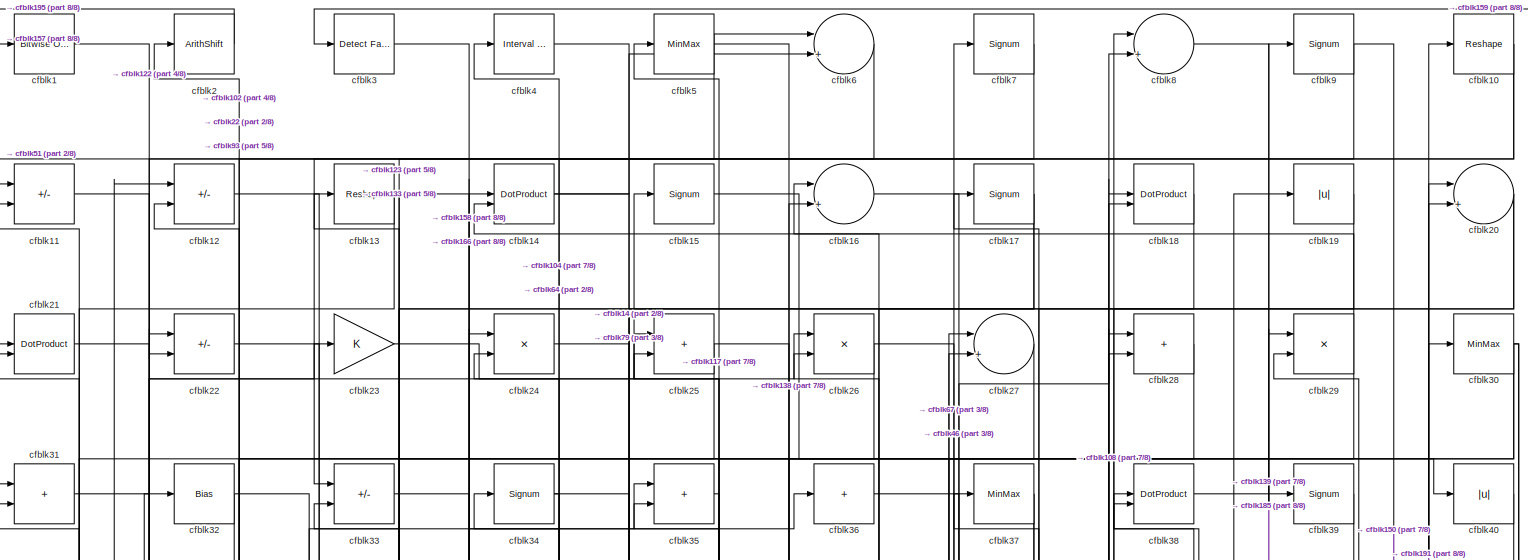
[diagram: root canvas - part 1/8, full width, top band]
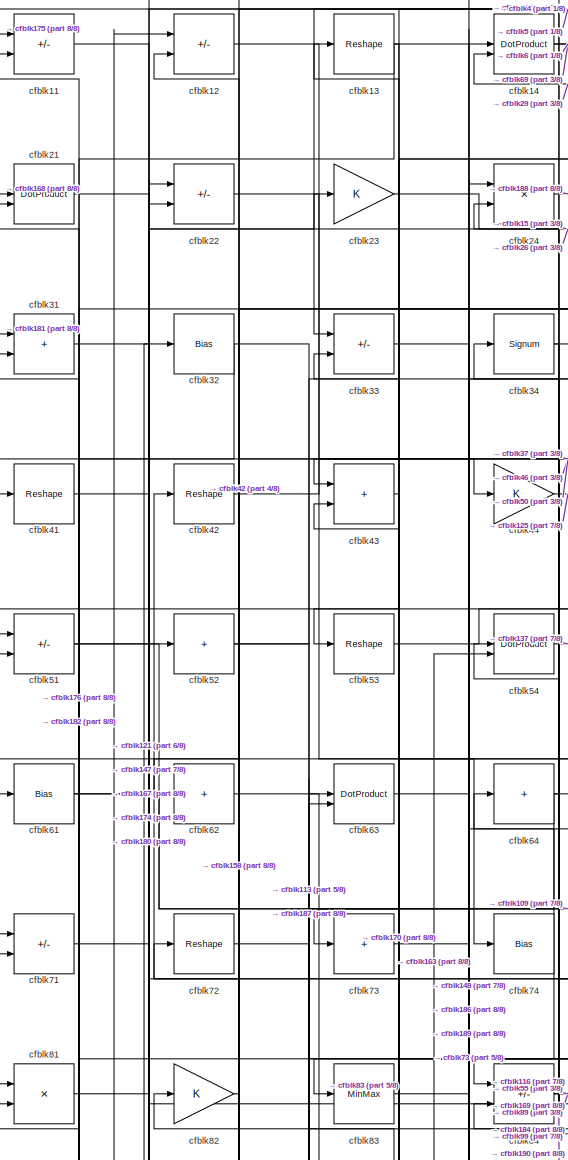
[diagram: root canvas - part 2/8, top left region]
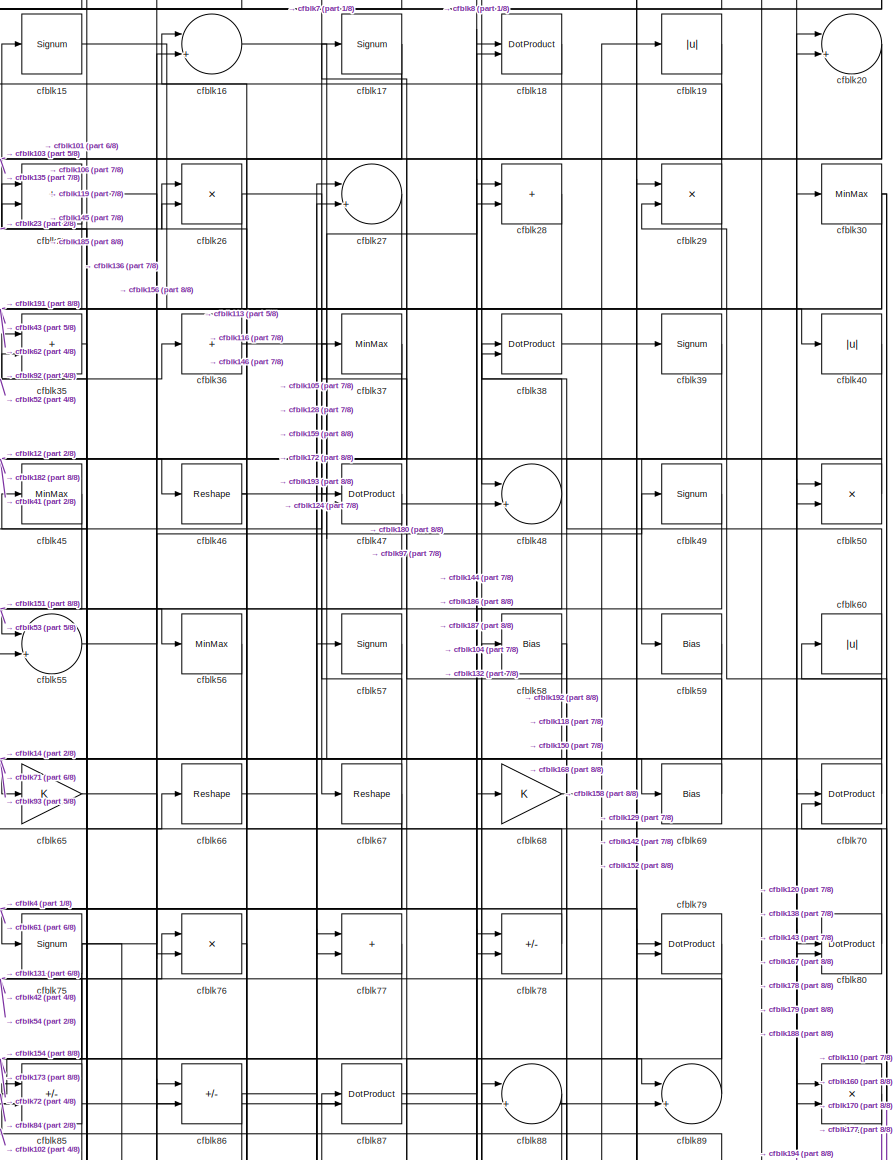
[diagram: root canvas - part 3/8, top right region]
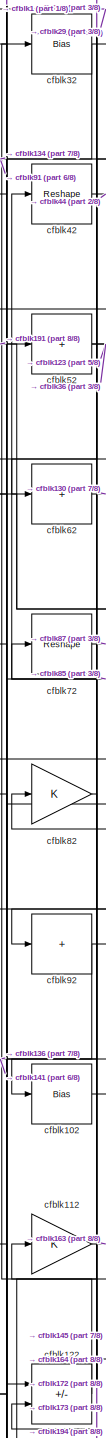
[diagram: root canvas - part 4/8, middle left region]
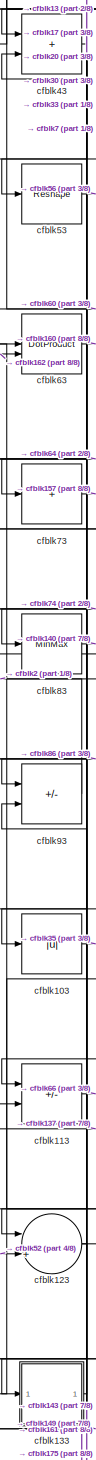
[diagram: root canvas - part 5/8, middle left region]
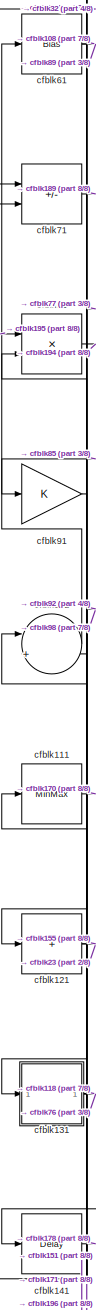
[diagram: root canvas - part 6/8, middle left region]
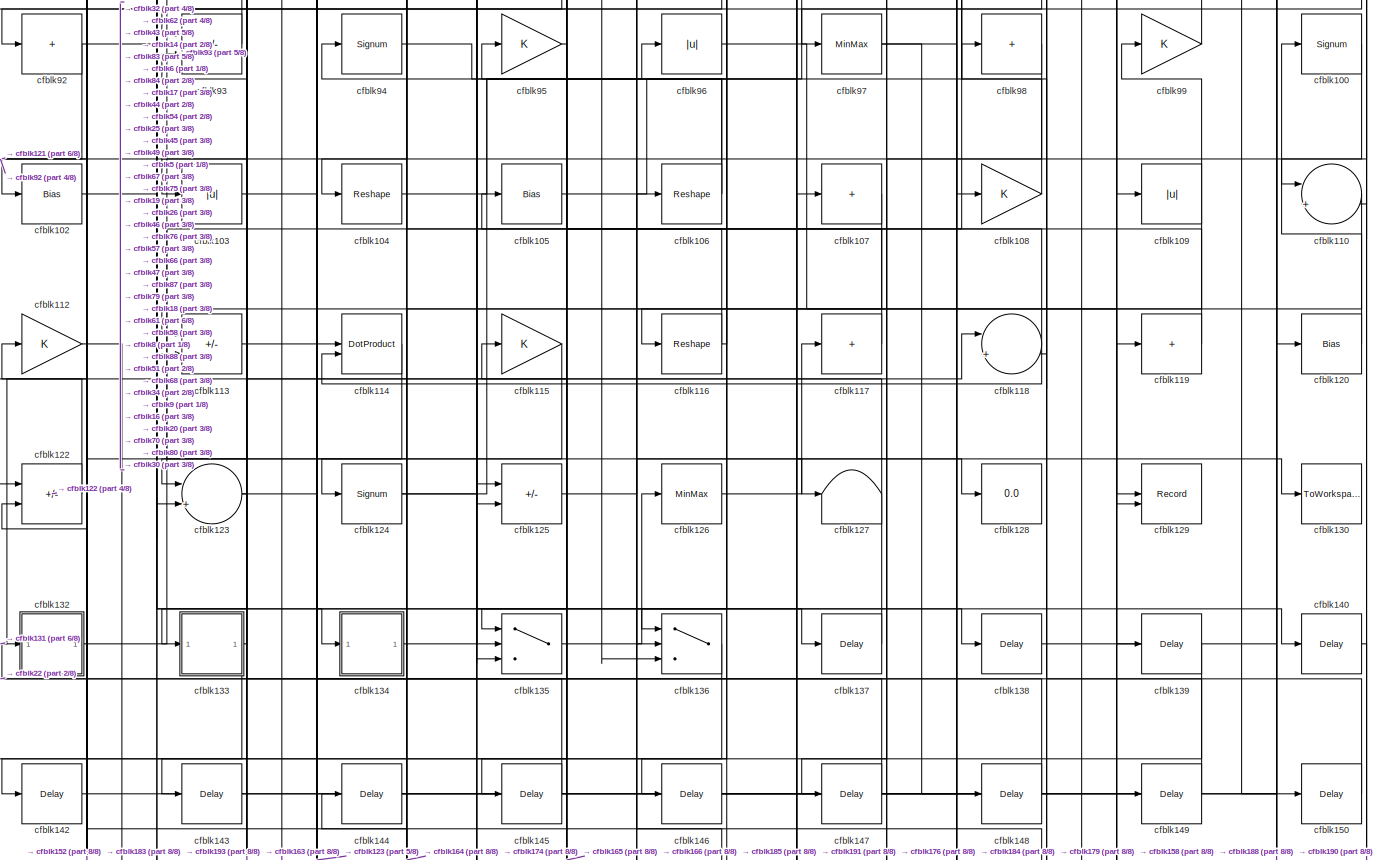
[diagram: root canvas - part 7/8, full width, middle band]
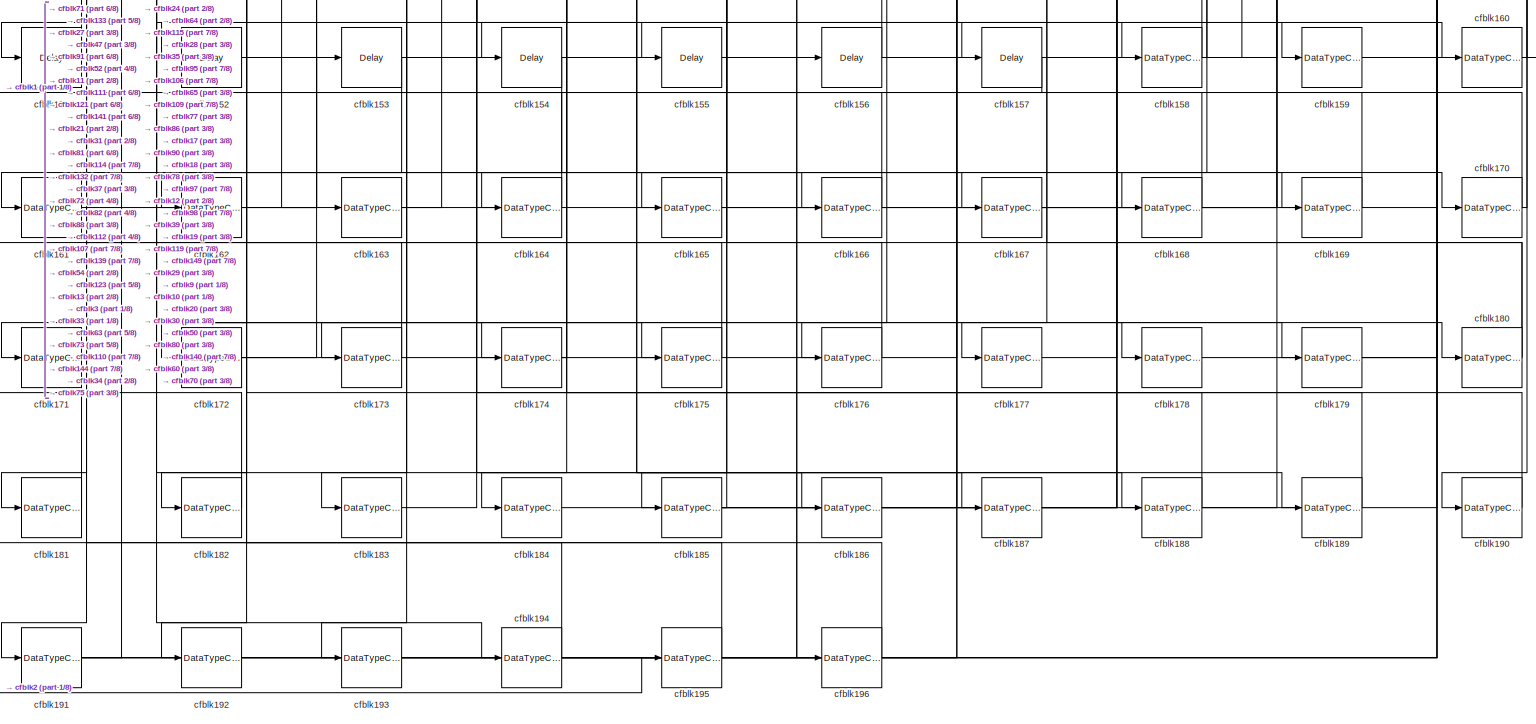
[diagram: root canvas - part 8/8, full width, bottom band]
MODEL slx_ef4070218fa3
KIND model
CONFIG AbsTol = auto
CONFIG EnableMultiTasking = off
CONFIG FixedStep = auto
CONFIG MaxStep = auto
CONFIG MinStep = auto
CONFIG RelTol = 1e-3
CONFIG SampleTimeConstraint = Unconstrained
CONFIG SolverName = VariableStepAuto
CONFIG StartTime = 0.0
CONFIG StopTime = 10.0
BLOCK [Reference] cfblk1  REF=simulink/Logic and Bit
Operations/Bitwise
Operator
  LibrarySourceBlock = hdlsllib/Logic and Bit\nOperations/Bitwise\nOperator
  SourceBlock = simulink/Logic and Bit\nOperations/Bitwise\nOperator
  SourceType = Bitwise Operator
BLOCK [Reshape] cfblk10
BLOCK [Signum] cfblk100
BLOCK [Sum] cfblk101
  Inputs = |++
BLOCK [Bias] cfblk102
  Bias = 0.0
  SaturateOnIntegerOverflow = off
BLOCK [Abs] cfblk103
  SaturateOnIntegerOverflow = off
BLOCK [Reshape] cfblk104
BLOCK [Bias] cfblk105
  Bias = 0.0
  SaturateOnIntegerOverflow = off
BLOCK [Reshape] cfblk106
BLOCK [Sum] cfblk107
  IconShape = rectangular
  Inputs = +
BLOCK [Gain] cfblk108
BLOCK [Abs] cfblk109
  SaturateOnIntegerOverflow = off
BLOCK [Sum] cfblk11
  IconShape = rectangular
  Inputs = +-
BLOCK [Sum] cfblk110
  Inputs = |++
BLOCK [MinMax] cfblk111
BLOCK [Gain] cfblk112
BLOCK [Sum] cfblk113
  IconShape = rectangular
  Inputs = +-
BLOCK [DotProduct] cfblk114
  OutDataTypeStr = Inherit: Inherit via internal rule
BLOCK [Gain] cfblk115
BLOCK [Reshape] cfblk116
BLOCK [Sum] cfblk117
  IconShape = rectangular
  Inputs = +
BLOCK [Sum] cfblk118
  Inputs = |++
BLOCK [Sum] cfblk119
  IconShape = rectangular
  Inputs = +
BLOCK [Sum] cfblk12
  IconShape = rectangular
  Inputs = +-
BLOCK [Bias] cfblk120
  Bias = 0.0
  SaturateOnIntegerOverflow = off
BLOCK [Sum] cfblk121
  IconShape = rectangular
  Inputs = +
BLOCK [Sum] cfblk122
  IconShape = rectangular
  Inputs = +-
BLOCK [Sum] cfblk123
  Inputs = |++
BLOCK [Signum] cfblk124
BLOCK [Sum] cfblk125
  IconShape = rectangular
  Inputs = +-
BLOCK [MinMax] cfblk126
BLOCK [Terminator] cfblk127
BLOCK [Display] cfblk128
  Decimation = 1
BLOCK [Record] cfblk129
  CompatibilityTag = XY
  FileSettingsInternal = {"entries":[{"content":{"excelSettings":{"content":{},"type":"Streamout.ExcelSettings"}},"type":"Streamout.FileSettingStorage","uuid":""}],"packageUris":["http:\/\/schema.mathworks.com\/mf0\/streamout_blocks\/R2020a"],"version":"1.0"}
  Layout = [1 1]
  SignalsInternal = {"entries":[{"content":{"signals":[{"content":{"blockPath":[],"dimensions":[1],"domain":"","lineColor":"#a2142f","plots":[1],"port":1,"signalID":855,"signalName":"XY Graph:1"},"type":"RecordBlkView.Signal","uuid":""},{"content":{"blockPath":[],"dimensions":[1],"domain":"","lineColor":"#139fff","plots":[1],"port":2,"signalID":858,"signalName":"XY Graph:2"},"type":"RecordBlkView.Signal","uuid":""}]}...<+144ch>
  VisualizationBindings = {"xyplotplugin":{"info":[{"series":[{"bindingParametersList":[{"parameter":"X-Axis","signalID":855,"signalName":"XY Graph:1"},{"parameter":"Y-Axis","signalID":858,"signalName":"XY Graph:2"}],"seriesID":9135}],"subplotID":1}]}}
  st = -1
BLOCK [Reshape] cfblk13
BLOCK [ToWorkspace] cfblk130
  MaxDataPoints = inf
  SampleTime = -1
  SaveFormat = Timeseries
  VariableName = simout
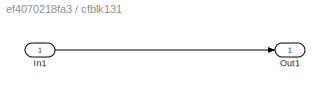
BLOCK [SubSystem] cfblk131
  LibrarySourceBlock = hdlsllib/Ports &\nSubsystems/Subsystem
BLOCK [Inport] cfblk131/In1
BLOCK [Outport] cfblk131/Out1
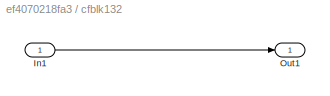
BLOCK [SubSystem] cfblk132
  LibrarySourceBlock = hdlsllib/Ports &\nSubsystems/Subsystem
BLOCK [Inport] cfblk132/In1
BLOCK [Outport] cfblk132/Out1
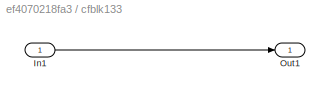
BLOCK [SubSystem] cfblk133
  LibrarySourceBlock = hdlsllib/Ports &\nSubsystems/Subsystem
BLOCK [Inport] cfblk133/In1
BLOCK [Outport] cfblk133/Out1
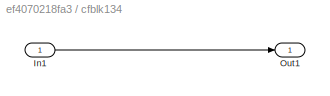
BLOCK [SubSystem] cfblk134
  LibrarySourceBlock = hdlsllib/Ports &\nSubsystems/Subsystem
BLOCK [Inport] cfblk134/In1
BLOCK [Outport] cfblk134/Out1
BLOCK [Switch] cfblk135
  InputSameDT = off
  SaturateOnIntegerOverflow = off
BLOCK [Switch] cfblk136
  InputSameDT = off
  SaturateOnIntegerOverflow = off
BLOCK [Delay] cfblk137
  InputPortMap = u0
  SampleTime = 1
BLOCK [Delay] cfblk138
  InputPortMap = u0
  SampleTime = 1
BLOCK [Delay] cfblk139
  InputPortMap = u0
  SampleTime = 1
BLOCK [DotProduct] cfblk14
  OutDataTypeStr = Inherit: Inherit via internal rule
BLOCK [Delay] cfblk140
  InputPortMap = u0
  SampleTime = 1
BLOCK [Delay] cfblk141
  InputPortMap = u0
  SampleTime = 1
BLOCK [Delay] cfblk142
  InputPortMap = u0
  SampleTime = 1
BLOCK [Delay] cfblk143
  InputPortMap = u0
  SampleTime = 1
BLOCK [Delay] cfblk144
  InputPortMap = u0
  SampleTime = 1
BLOCK [Delay] cfblk145
  InputPortMap = u0
  SampleTime = 1
BLOCK [Delay] cfblk146
  InputPortMap = u0
  SampleTime = 1
BLOCK [Delay] cfblk147
  InputPortMap = u0
  SampleTime = 1
BLOCK [Delay] cfblk148
  InputPortMap = u0
  SampleTime = 1
BLOCK [Delay] cfblk149
  InputPortMap = u0
  SampleTime = 1
BLOCK [Signum] cfblk15
BLOCK [Delay] cfblk150
  InputPortMap = u0
  SampleTime = 1
BLOCK [Delay] cfblk151
  InputPortMap = u0
  SampleTime = 1
BLOCK [Delay] cfblk152
  InputPortMap = u0
  SampleTime = 1
BLOCK [Delay] cfblk153
  InputPortMap = u0
  SampleTime = 1
BLOCK [Delay] cfblk154
  InputPortMap = u0
  SampleTime = 1
BLOCK [Delay] cfblk155
  InputPortMap = u0
  SampleTime = 1
BLOCK [Delay] cfblk156
  InputPortMap = u0
  SampleTime = 1
BLOCK [Delay] cfblk157
  InputPortMap = u0
  SampleTime = 1
BLOCK [DataTypeConversion] cfblk158
  RndMeth = Floor
  SaturateOnIntegerOverflow = off
BLOCK [DataTypeConversion] cfblk159
  OutDataTypeStr = uint8
  RndMeth = Floor
  SaturateOnIntegerOverflow = off
BLOCK [Sum] cfblk16
  Inputs = |++
BLOCK [DataTypeConversion] cfblk160
  OutDataTypeStr = uint8
  RndMeth = Floor
  SaturateOnIntegerOverflow = off
BLOCK [DataTypeConversion] cfblk161
  OutDataTypeStr = uint8
  RndMeth = Floor
  SaturateOnIntegerOverflow = off
BLOCK [DataTypeConversion] cfblk162
  OutDataTypeStr = uint8
  RndMeth = Floor
  SaturateOnIntegerOverflow = off
BLOCK [DataTypeConversion] cfblk163
  RndMeth = Floor
  SaturateOnIntegerOverflow = off
BLOCK [DataTypeConversion] cfblk164
  OutDataTypeStr = uint8
  RndMeth = Floor
  SaturateOnIntegerOverflow = off
BLOCK [DataTypeConversion] cfblk165
  OutDataTypeStr = uint8
  RndMeth = Floor
  SaturateOnIntegerOverflow = off
BLOCK [DataTypeConversion] cfblk166
  OutDataTypeStr = uint8
  RndMeth = Floor
  SaturateOnIntegerOverflow = off
BLOCK [DataTypeConversion] cfblk167
  OutDataTypeStr = uint8
  RndMeth = Floor
  SaturateOnIntegerOverflow = off
BLOCK [DataTypeConversion] cfblk168
  OutDataTypeStr = uint8
  RndMeth = Floor
  SaturateOnIntegerOverflow = off
BLOCK [DataTypeConversion] cfblk169
  OutDataTypeStr = uint8
  RndMeth = Floor
  SaturateOnIntegerOverflow = off
BLOCK [Signum] cfblk17
BLOCK [DataTypeConversion] cfblk170
  RndMeth = Floor
  SaturateOnIntegerOverflow = off
BLOCK [DataTypeConversion] cfblk171
  OutDataTypeStr = uint8
  RndMeth = Floor
  SaturateOnIntegerOverflow = off
BLOCK [DataTypeConversion] cfblk172
  RndMeth = Floor
  SaturateOnIntegerOverflow = off
BLOCK [DataTypeConversion] cfblk173
  OutDataTypeStr = uint8
  RndMeth = Floor
  SaturateOnIntegerOverflow = off
BLOCK [DataTypeConversion] cfblk174
  OutDataTypeStr = uint8
  RndMeth = Floor
  SaturateOnIntegerOverflow = off
BLOCK [DataTypeConversion] cfblk175
  OutDataTypeStr = uint8
  RndMeth = Floor
  SaturateOnIntegerOverflow = off
BLOCK [DataTypeConversion] cfblk176
  OutDataTypeStr = uint8
  RndMeth = Floor
  SaturateOnIntegerOverflow = off
BLOCK [DataTypeConversion] cfblk177
  OutDataTypeStr = uint8
  RndMeth = Floor
  SaturateOnIntegerOverflow = off
BLOCK [DataTypeConversion] cfblk178
  OutDataTypeStr = uint8
  RndMeth = Floor
  SaturateOnIntegerOverflow = off
BLOCK [DataTypeConversion] cfblk179
  OutDataTypeStr = uint8
  RndMeth = Floor
  SaturateOnIntegerOverflow = off
BLOCK [DotProduct] cfblk18
  OutDataTypeStr = Inherit: Inherit via internal rule
BLOCK [DataTypeConversion] cfblk180
  RndMeth = Floor
  SaturateOnIntegerOverflow = off
BLOCK [DataTypeConversion] cfblk181
  OutDataTypeStr = uint8
  RndMeth = Floor
  SaturateOnIntegerOverflow = off
BLOCK [DataTypeConversion] cfblk182
  OutDataTypeStr = uint8
  RndMeth = Floor
  SaturateOnIntegerOverflow = off
BLOCK [DataTypeConversion] cfblk183
  OutDataTypeStr = uint8
  RndMeth = Floor
  SaturateOnIntegerOverflow = off
BLOCK [DataTypeConversion] cfblk184
  OutDataTypeStr = uint8
  RndMeth = Floor
  SaturateOnIntegerOverflow = off
BLOCK [DataTypeConversion] cfblk185
  RndMeth = Floor
  SaturateOnIntegerOverflow = off
BLOCK [DataTypeConversion] cfblk186
  OutDataTypeStr = uint8
  RndMeth = Floor
  SaturateOnIntegerOverflow = off
BLOCK [DataTypeConversion] cfblk187
  OutDataTypeStr = uint8
  RndMeth = Floor
  SaturateOnIntegerOverflow = off
BLOCK [DataTypeConversion] cfblk188
  RndMeth = Floor
  SaturateOnIntegerOverflow = off
BLOCK [DataTypeConversion] cfblk189
  OutDataTypeStr = uint8
  RndMeth = Floor
  SaturateOnIntegerOverflow = off
BLOCK [Abs] cfblk19
  SaturateOnIntegerOverflow = off
BLOCK [DataTypeConversion] cfblk190
  OutDataTypeStr = uint8
  RndMeth = Floor
  SaturateOnIntegerOverflow = off
BLOCK [DataTypeConversion] cfblk191
  RndMeth = Floor
  SaturateOnIntegerOverflow = off
BLOCK [DataTypeConversion] cfblk192
  OutDataTypeStr = uint8
  RndMeth = Floor
  SaturateOnIntegerOverflow = off
BLOCK [DataTypeConversion] cfblk193
  OutDataTypeStr = uint8
  RndMeth = Floor
  SaturateOnIntegerOverflow = off
BLOCK [DataTypeConversion] cfblk194
  RndMeth = Floor
  SaturateOnIntegerOverflow = off
BLOCK [DataTypeConversion] cfblk195
  OutDataTypeStr = uint8
  RndMeth = Floor
  SaturateOnIntegerOverflow = off
BLOCK [DataTypeConversion] cfblk196
  OutDataTypeStr = uint8
  RndMeth = Floor
  SaturateOnIntegerOverflow = off
BLOCK [ArithShift] cfblk2
  BitShiftNumber = 8
  InputPortMap = u0
BLOCK [Sum] cfblk20
  Inputs = |++
BLOCK [DotProduct] cfblk21
  OutDataTypeStr = Inherit: Inherit via internal rule
BLOCK [Sum] cfblk22
  IconShape = rectangular
  Inputs = +-
BLOCK [Gain] cfblk23
BLOCK [Product] cfblk24
  Inputs = */
  RndMeth = Zero
  SaturateOnIntegerOverflow = on
BLOCK [Sum] cfblk25
  IconShape = rectangular
BLOCK [Product] cfblk26
  Inputs = */
  RndMeth = Zero
  SaturateOnIntegerOverflow = on
BLOCK [Sum] cfblk27
  Inputs = |++
BLOCK [Sum] cfblk28
  IconShape = rectangular
BLOCK [Product] cfblk29
  Inputs = */
  RndMeth = Zero
  SaturateOnIntegerOverflow = on
BLOCK [Reference] cfblk3  REF=hdlsllib/Logic and Bit
Operations/Detect Fall
Negative
  SourceBlock = hdlsllib/Logic and Bit\nOperations/Detect Fall\nNegative
  SourceType = Detect Fall Negative
BLOCK [MinMax] cfblk30
BLOCK [Sum] cfblk31
  IconShape = rectangular
BLOCK [Bias] cfblk32
  Bias = 0.0
  SaturateOnIntegerOverflow = off
BLOCK [Sum] cfblk33
  IconShape = rectangular
  Inputs = +-
BLOCK [Signum] cfblk34
BLOCK [Sum] cfblk35
  IconShape = rectangular
BLOCK [Sum] cfblk36
  IconShape = rectangular
  Inputs = +
BLOCK [MinMax] cfblk37
BLOCK [DotProduct] cfblk38
  OutDataTypeStr = Inherit: Inherit via internal rule
BLOCK [Signum] cfblk39
BLOCK [Reference] cfblk4  REF=hdlsllib/Logic and Bit
Operations/Interval Test
  SourceBlock = hdlsllib/Logic and Bit\nOperations/Interval Test
  SourceType = Interval Test
BLOCK [Abs] cfblk40
  SaturateOnIntegerOverflow = off
BLOCK [Reshape] cfblk41
BLOCK [Reshape] cfblk42
BLOCK [Sum] cfblk43
  IconShape = rectangular
BLOCK [Gain] cfblk44
BLOCK [MinMax] cfblk45
BLOCK [Reshape] cfblk46
BLOCK [DotProduct] cfblk47
  OutDataTypeStr = Inherit: Inherit via internal rule
BLOCK [Sum] cfblk48
  Inputs = |++
BLOCK [Signum] cfblk49
BLOCK [MinMax] cfblk5
BLOCK [Product] cfblk50
  Inputs = */
  RndMeth = Zero
  SaturateOnIntegerOverflow = on
BLOCK [Sum] cfblk51
  IconShape = rectangular
  Inputs = +-
BLOCK [Sum] cfblk52
  IconShape = rectangular
  Inputs = +
BLOCK [Reshape] cfblk53
BLOCK [DotProduct] cfblk54
  OutDataTypeStr = Inherit: Inherit via internal rule
BLOCK [Sum] cfblk55
  Inputs = |++
BLOCK [MinMax] cfblk56
BLOCK [Signum] cfblk57
BLOCK [Bias] cfblk58
  Bias = 0.0
  SaturateOnIntegerOverflow = off
BLOCK [Bias] cfblk59
  Bias = 0.0
  SaturateOnIntegerOverflow = off
BLOCK [Sum] cfblk6
  Inputs = |++
BLOCK [Abs] cfblk60
  SaturateOnIntegerOverflow = off
BLOCK [Bias] cfblk61
  Bias = 0.0
  SaturateOnIntegerOverflow = off
BLOCK [Sum] cfblk62
  IconShape = rectangular
  Inputs = +
BLOCK [DotProduct] cfblk63
  OutDataTypeStr = Inherit: Inherit via internal rule
BLOCK [Sum] cfblk64
  IconShape = rectangular
  Inputs = +
BLOCK [Gain] cfblk65
BLOCK [Reshape] cfblk66
BLOCK [Reshape] cfblk67
BLOCK [Gain] cfblk68
BLOCK [Bias] cfblk69
  Bias = 0.0
  SaturateOnIntegerOverflow = off
BLOCK [Signum] cfblk7
BLOCK [DotProduct] cfblk70
  OutDataTypeStr = Inherit: Inherit via internal rule
BLOCK [Sum] cfblk71
  IconShape = rectangular
  Inputs = +-
BLOCK [Reshape] cfblk72
BLOCK [Sum] cfblk73
  IconShape = rectangular
  Inputs = +
BLOCK [Bias] cfblk74
  Bias = 0.0
  SaturateOnIntegerOverflow = off
BLOCK [Signum] cfblk75
BLOCK [Product] cfblk76
  Inputs = */
  RndMeth = Zero
  SaturateOnIntegerOverflow = on
BLOCK [Sum] cfblk77
  IconShape = rectangular
BLOCK [Sum] cfblk78
  IconShape = rectangular
  Inputs = +-
BLOCK [DotProduct] cfblk79
  OutDataTypeStr = Inherit: Inherit via internal rule
BLOCK [Sum] cfblk8
  Inputs = |++
BLOCK [DotProduct] cfblk80
  OutDataTypeStr = Inherit: Inherit via internal rule
BLOCK [Product] cfblk81
  Inputs = */
  RndMeth = Zero
  SaturateOnIntegerOverflow = on
BLOCK [Gain] cfblk82
BLOCK [MinMax] cfblk83
BLOCK [Sum] cfblk84
  IconShape = rectangular
  Inputs = +-
BLOCK [Sum] cfblk85
  IconShape = rectangular
  Inputs = +-
BLOCK [Sum] cfblk86
  IconShape = rectangular
  Inputs = +-
BLOCK [DotProduct] cfblk87
  OutDataTypeStr = Inherit: Inherit via internal rule
BLOCK [Sum] cfblk88
  Inputs = |++
BLOCK [Sum] cfblk89
  Inputs = |++
BLOCK [Signum] cfblk9
BLOCK [Product] cfblk90
  Inputs = */
  RndMeth = Zero
  SaturateOnIntegerOverflow = on
BLOCK [Gain] cfblk91
BLOCK [Sum] cfblk92
  IconShape = rectangular
  Inputs = +
BLOCK [Sum] cfblk93
  IconShape = rectangular
  Inputs = +-
BLOCK [Signum] cfblk94
BLOCK [Gain] cfblk95
BLOCK [Abs] cfblk96
  SaturateOnIntegerOverflow = off
BLOCK [MinMax] cfblk97
BLOCK [Sum] cfblk98
  IconShape = rectangular
  Inputs = +
BLOCK [Gain] cfblk99
LINE cfblk100:1 -> cfblk147:1
LINE cfblk101:1 -> cfblk61:1
LINE cfblk102:1 -> cfblk85:1
LINE cfblk103:1 -> cfblk35:1
LINE cfblk104:1 -> cfblk88:1
LINE cfblk105:1 -> cfblk57:1
NET cfblk106:1 -> cfblk25:1, cfblk94:1
LINE cfblk107:1 -> cfblk183:1
LINE cfblk108:1 -> cfblk8:1
NET cfblk109:1 -> cfblk176:1, cfblk99:1
NET cfblk10:1 -> cfblk102:1, cfblk22:2
LINE cfblk110:1 -> cfblk164:1
LINE cfblk111:1 -> cfblk170:1
LINE cfblk112:1 -> cfblk163:1
LINE cfblk113:1 -> cfblk66:1
LINE cfblk114:1 -> cfblk152:1
LINE cfblk115:1 -> cfblk124:1
NET cfblk116:1 -> cfblk26:1, cfblk84:2
LINE cfblk117:1 -> cfblk5:1
NET cfblk118:1 -> cfblk105:1, cfblk114:2
LINE cfblk119:1 -> cfblk45:1
LINE cfblk11:1 -> cfblk174:1
LINE cfblk120:1 -> cfblk100:1
NET cfblk121:1 -> cfblk155:1, cfblk23:1
LINE cfblk122:1 -> cfblk32:1
NET cfblk123:1 -> cfblk143:1, cfblk175:1
NET cfblk124:1 -> cfblk47:2, cfblk87:1
LINE cfblk125:1 -> cfblk127:1
LINE cfblk126:1 -> cfblk117:1
LINE cfblk12:1 -> cfblk46:1
LINE cfblk131/In1:1 -> cfblk131/Out1:1
NET cfblk131:1 -> cfblk101:1, cfblk118:1, cfblk76:1
LINE cfblk132/In1:1 -> cfblk132/Out1:1
LINE cfblk132:1 -> cfblk58:1
LINE cfblk133/In1:1 -> cfblk133/Out1:1
NET cfblk133:1 -> cfblk161:1, cfblk33:2
LINE cfblk134/In1:1 -> cfblk134/Out1:1
LINE cfblk134:1 -> cfblk125:1
LINE cfblk135:1 -> cfblk126:1
LINE cfblk136:1 -> cfblk142:1
LINE cfblk137:1 -> cfblk93:2
LINE cfblk138:1 -> cfblk20:1
LINE cfblk139:1 -> cfblk193:1
NET cfblk13:1 -> cfblk186:1, cfblk51:1, cfblk73:1
LINE cfblk140:1 -> cfblk190:1
LINE cfblk141:1 -> cfblk178:1
LINE cfblk142:1 -> cfblk79:1
LINE cfblk143:1 -> cfblk80:2
LINE cfblk144:1 -> cfblk18:1
LINE cfblk145:1 -> cfblk122:2
LINE cfblk146:1 -> cfblk70:1
LINE cfblk147:1 -> cfblk22:1
LINE cfblk148:1 -> cfblk14:1
LINE cfblk149:1 -> cfblk43:2
NET cfblk14:1 -> cfblk69:1, cfblk6:2
LINE cfblk150:1 -> cfblk88:2
LINE cfblk151:1 -> cfblk71:1
LINE cfblk152:1 -> cfblk29:1
LINE cfblk153:1 -> cfblk162:1
LINE cfblk154:1 -> cfblk181:1
LINE cfblk155:1 -> cfblk196:1
LINE cfblk156:1 -> cfblk86:1
LINE cfblk157:1 -> cfblk1:1
NET cfblk158:1 -> cfblk12:2, cfblk19:1, cfblk98:1
LINE cfblk159:1 -> cfblk3:1
LINE cfblk15:1 -> cfblk40:1
LINE cfblk160:1 -> cfblk70:2
LINE cfblk161:1 -> cfblk63:1
LINE cfblk162:1 -> cfblk63:2
NET cfblk163:1 -> cfblk119:1, cfblk54:2
LINE cfblk164:1 -> cfblk112:1
LINE cfblk165:1 -> cfblk149:1
LINE cfblk166:1 -> cfblk95:1
LINE cfblk167:1 -> cfblk80:1
LINE cfblk168:1 -> cfblk21:1
LINE cfblk169:1 -> cfblk21:2
LINE cfblk16:1 -> cfblk120:1
NET cfblk170:1 -> cfblk13:1, cfblk60:1
LINE cfblk171:1 -> cfblk111:1
NET cfblk172:1 -> cfblk153:1, cfblk77:1
LINE cfblk173:1 -> cfblk82:1
LINE cfblk174:1 -> cfblk144:1
LINE cfblk175:1 -> cfblk11:1
LINE cfblk176:1 -> cfblk11:2
LINE cfblk177:1 -> cfblk18:2
LINE cfblk178:1 -> cfblk90:1
LINE cfblk179:1 -> cfblk90:2
NET cfblk17:1 -> cfblk103:1, cfblk135:3
NET cfblk180:1 -> cfblk17:1, cfblk35:2
LINE cfblk181:1 -> cfblk31:1
LINE cfblk182:1 -> cfblk31:2
LINE cfblk183:1 -> cfblk114:1
LINE cfblk184:1 -> cfblk107:1
NET cfblk185:1 -> cfblk115:1, cfblk78:1, cfblk9:1
LINE cfblk186:1 -> cfblk28:1
LINE cfblk187:1 -> cfblk28:2
NET cfblk188:1 -> cfblk132:1, cfblk30:1
LINE cfblk189:1 -> cfblk24:1
LINE cfblk18:1 -> cfblk48:1
LINE cfblk190:1 -> cfblk24:2
NET cfblk191:1 -> cfblk106:1, cfblk10:1, cfblk50:1, cfblk52:1
LINE cfblk192:1 -> cfblk27:1
LINE cfblk193:1 -> cfblk27:2
NET cfblk194:1 -> cfblk20:2, cfblk72:1
LINE cfblk195:1 -> cfblk81:1
LINE cfblk196:1 -> cfblk81:2
LINE cfblk19:1 -> cfblk116:1
LINE cfblk1:1 -> cfblk122:1
NET cfblk20:1 -> cfblk47:1, cfblk53:1
LINE cfblk21:1 -> cfblk167:1
LINE cfblk22:1 -> cfblk74:1
LINE cfblk23:1 -> cfblk15:1
LINE cfblk24:1 -> cfblk188:1
NET cfblk25:1 -> cfblk50:2, cfblk92:1
NET cfblk26:1 -> cfblk67:1, cfblk76:2
LINE cfblk27:1 -> cfblk191:1
LINE cfblk28:1 -> cfblk185:1
NET cfblk29:1 -> cfblk14:2, cfblk62:1
LINE cfblk2:1 -> cfblk195:1
NET cfblk30:1 -> cfblk110:1, cfblk110:2, cfblk43:1, cfblk77:2
LINE cfblk31:1 -> cfblk180:1
NET cfblk32:1 -> cfblk134:1, cfblk91:1
LINE cfblk33:1 -> cfblk166:1
NET cfblk34:1 -> cfblk169:1, cfblk184:1
LINE cfblk35:1 -> cfblk75:1
LINE cfblk36:1 -> cfblk48:2
NET cfblk37:1 -> cfblk182:1, cfblk84:1
LINE cfblk38:1 -> cfblk39:1
LINE cfblk39:1 -> cfblk168:1
LINE cfblk3:1 -> cfblk158:1
LINE cfblk40:1 -> cfblk59:1
LINE cfblk41:1 -> cfblk26:2
LINE cfblk42:1 -> cfblk44:1
LINE cfblk43:1 -> cfblk133:1
LINE cfblk44:1 -> cfblk125:2
LINE cfblk45:1 -> cfblk55:1
NET cfblk46:1 -> cfblk136:1, cfblk8:2
LINE cfblk47:1 -> cfblk151:1
NET cfblk48:1 -> cfblk38:1, cfblk78:2
LINE cfblk49:1 -> cfblk135:1
LINE cfblk4:1 -> cfblk79:2
LINE cfblk50:1 -> cfblk41:1
NET cfblk51:1 -> cfblk109:1, cfblk12:1
NET cfblk52:1 -> cfblk123:2, cfblk36:1
LINE cfblk53:1 -> cfblk56:1
LINE cfblk54:1 -> cfblk137:1
LINE cfblk55:1 -> cfblk49:1
LINE cfblk56:1 -> cfblk71:2
LINE cfblk57:1 -> cfblk135:2
NET cfblk58:1 -> cfblk118:2, cfblk86:2
LINE cfblk59:1 -> cfblk65:1
NET cfblk5:1 -> cfblk138:1, cfblk51:2, cfblk6:1
NET cfblk60:1 -> cfblk38:2, cfblk93:1
NET cfblk61:1 -> cfblk108:1, cfblk89:2
LINE cfblk62:1 -> cfblk130:1
LINE cfblk63:1 -> cfblk160:1
NET cfblk64:1 -> cfblk113:2, cfblk187:1, cfblk4:1
LINE cfblk65:1 -> cfblk156:1
LINE cfblk66:1 -> cfblk128:1
NET cfblk67:1 -> cfblk145:1, cfblk7:1, cfblk85:2
LINE cfblk68:1 -> cfblk129:1
LINE cfblk69:1 -> cfblk37:1
LINE cfblk6:1 -> cfblk104:1
LINE cfblk70:1 -> cfblk29:2
LINE cfblk71:1 -> cfblk189:1
LINE cfblk72:1 -> cfblk87:2
LINE cfblk73:1 -> cfblk157:1
NET cfblk74:1 -> cfblk64:1, cfblk83:1
NET cfblk75:1 -> cfblk136:3, cfblk154:1, cfblk16:2, cfblk173:1
LINE cfblk76:1 -> cfblk146:1
LINE cfblk77:1 -> cfblk131:1
LINE cfblk78:1 -> cfblk16:1
LINE cfblk79:1 -> cfblk97:1
LINE cfblk7:1 -> cfblk123:1
LINE cfblk80:1 -> cfblk25:2
LINE cfblk81:1 -> cfblk194:1
LINE cfblk82:1 -> cfblk172:1
LINE cfblk83:1 -> cfblk140:1
NET cfblk84:1 -> cfblk55:2, cfblk89:1
NET cfblk85:1 -> cfblk101:2, cfblk42:1
NET cfblk86:1 -> cfblk113:1, cfblk159:1
LINE cfblk87:1 -> cfblk68:1
LINE cfblk88:1 -> cfblk192:1
LINE cfblk89:1 -> cfblk54:1
LINE cfblk8:1 -> cfblk139:1
LINE cfblk90:1 -> cfblk177:1
LINE cfblk91:1 -> cfblk171:1
NET cfblk92:1 -> cfblk136:2, cfblk141:1
LINE cfblk93:1 -> cfblk2:1
LINE cfblk94:1 -> cfblk96:1
LINE cfblk95:1 -> cfblk165:1
LINE cfblk96:1 -> cfblk129:2
NET cfblk97:1 -> cfblk148:1, cfblk179:1
LINE cfblk98:1 -> cfblk121:1
LINE cfblk99:1 -> cfblk34:1
NET cfblk9:1 -> cfblk150:1, cfblk33:1
note: NET lines group one-source signal fan-out (src -> all destinations, sorted); 1:1 wires keep LINE
